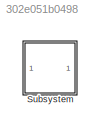
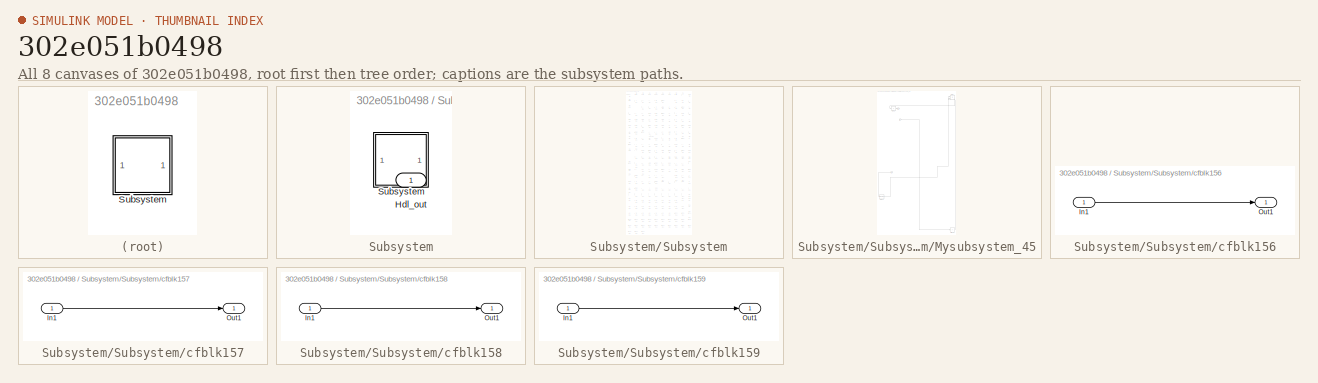
[diagram: thumbnail index - all 8 canvases of the model, root first then tree order]
MODEL slx_302e051b0498
KIND model
CONFIG AbsTol = auto
CONFIG EnableMultiTasking = off
CONFIG FixedStep = auto
CONFIG MaxStep = auto
CONFIG MinStep = auto
CONFIG RelTol = 1e-3
CONFIG SampleTimeConstraint = Unconstrained
CONFIG SolverName = VariableStepAuto
CONFIG StartTime = 0.0
CONFIG StopTime = 10.0
BLOCK [SubSystem] Subsystem
BLOCK [Outport] Subsystem/Hdl_out
  OutDataTypeStr = uint8
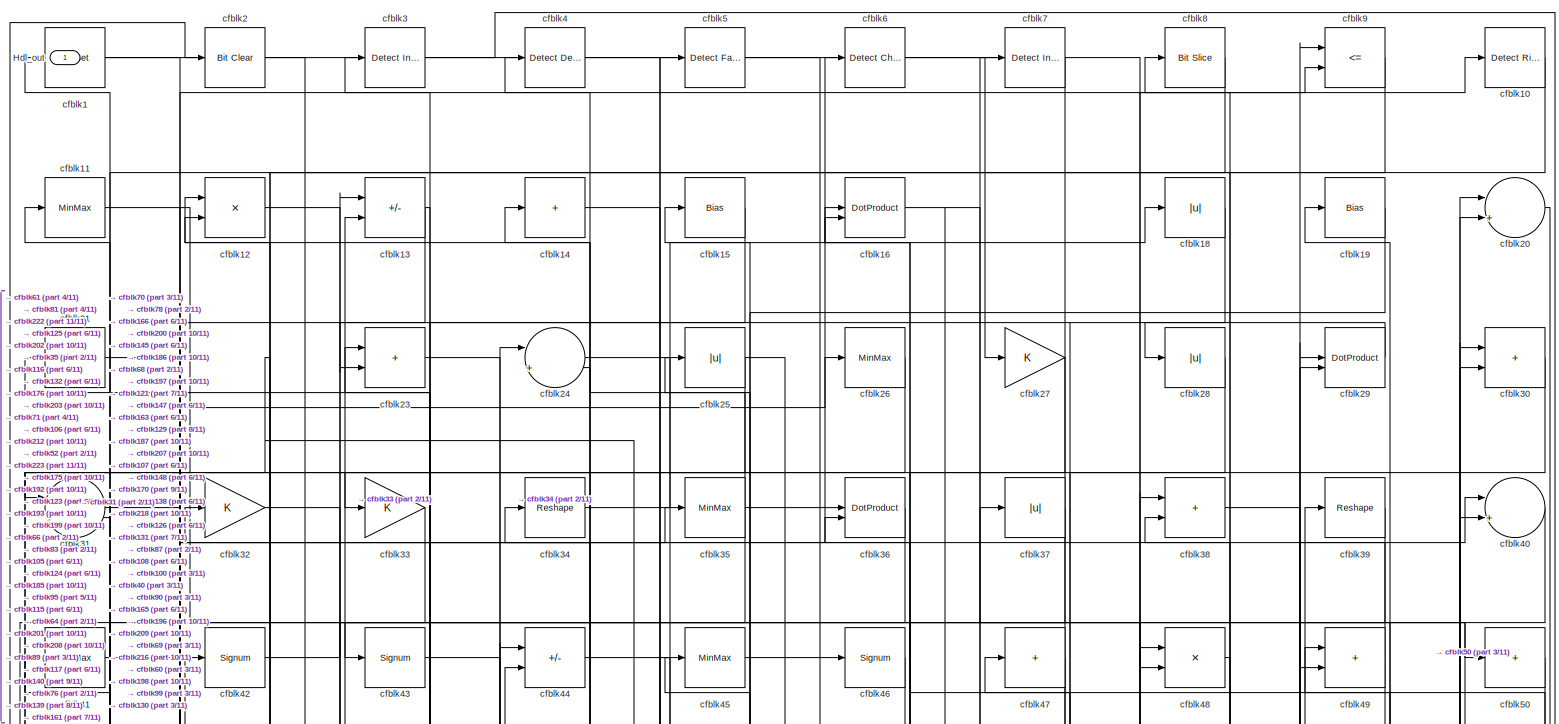
[diagram: Subsystem/Subsystem - part 1/11, full width, top band]
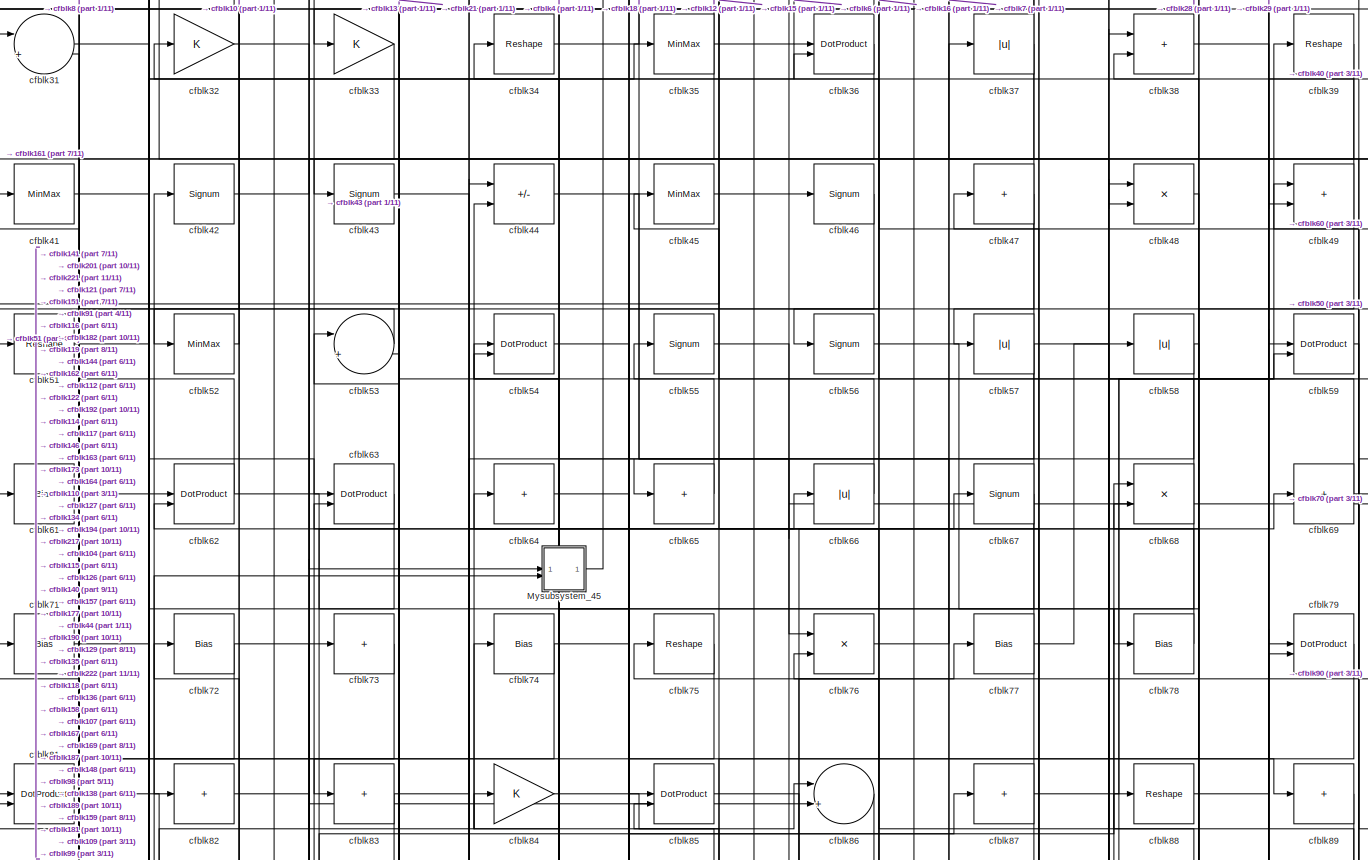
[diagram: Subsystem/Subsystem - part 2/11, full width, top band]
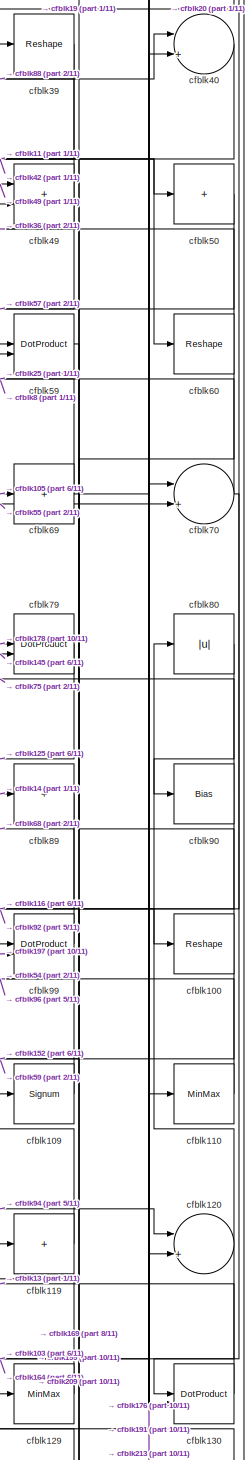
[diagram: Subsystem/Subsystem - part 3/11, middle right region]
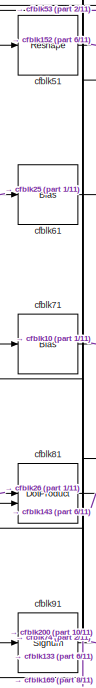
[diagram: Subsystem/Subsystem - part 4/11, top left region]
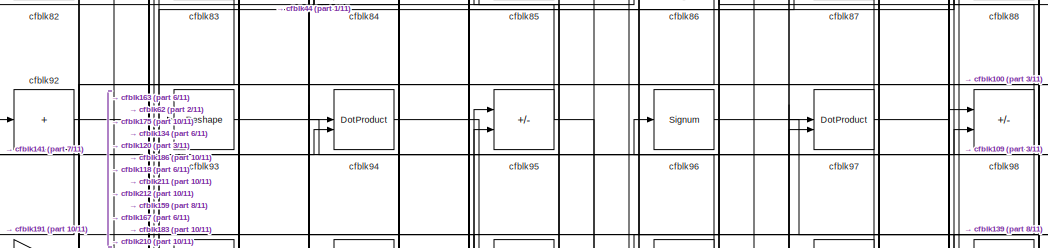
[diagram: Subsystem/Subsystem - part 5/11, central region]
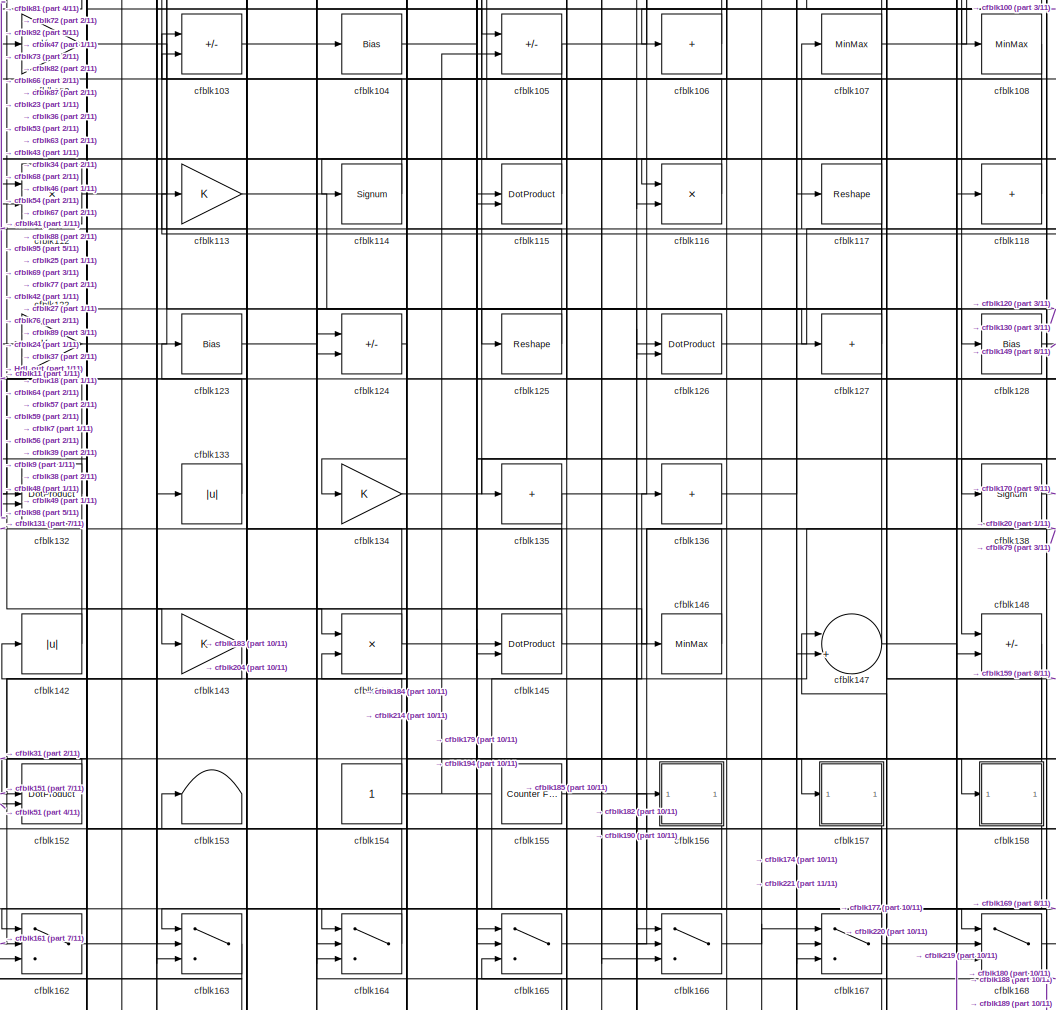
[diagram: Subsystem/Subsystem - part 6/11, central region]
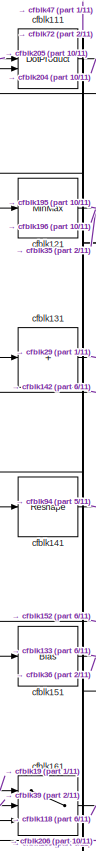
[diagram: Subsystem/Subsystem - part 7/11, middle left region]
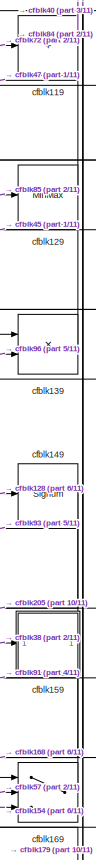
[diagram: Subsystem/Subsystem - part 8/11, middle right region]
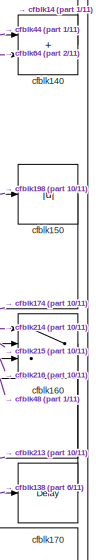
[diagram: Subsystem/Subsystem - part 9/11, middle right region]
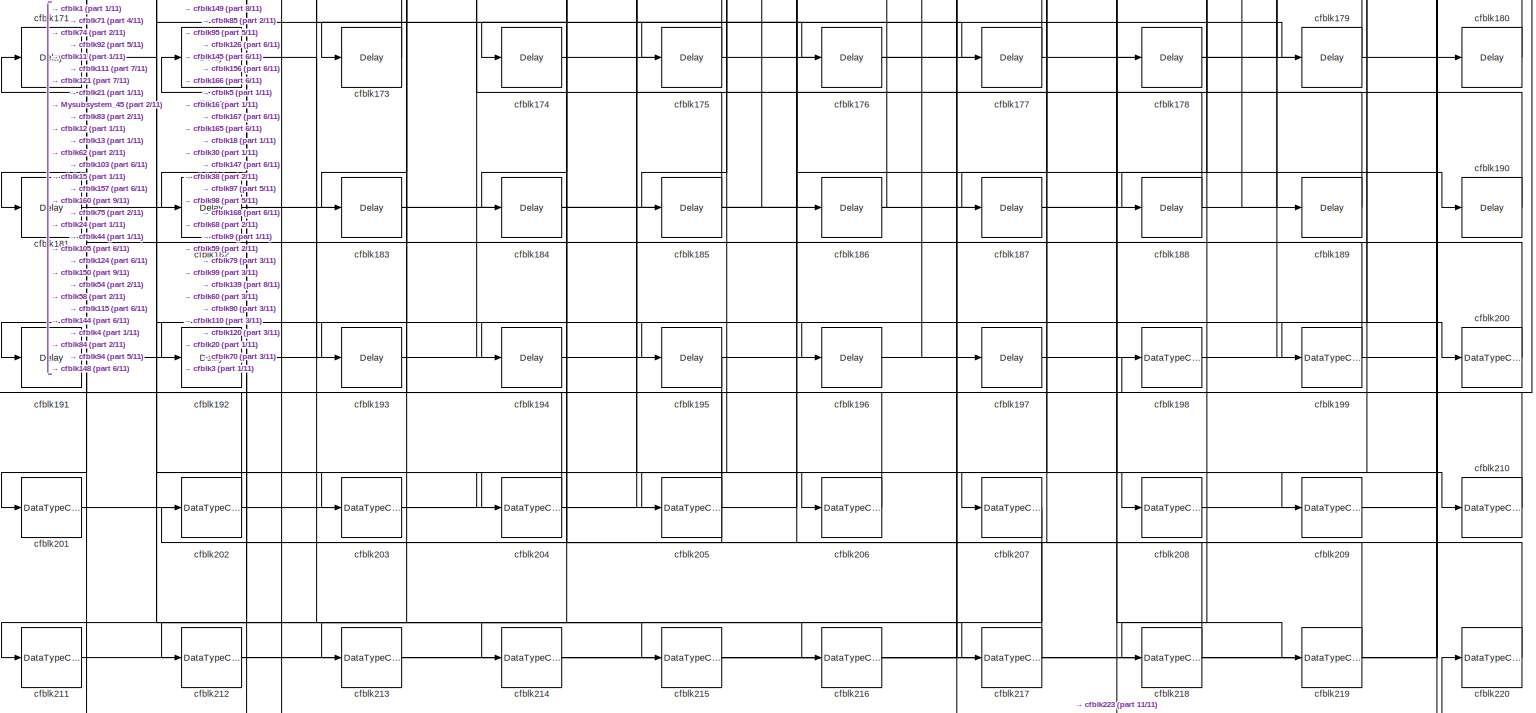
[diagram: Subsystem/Subsystem - part 10/11, full width, bottom band]
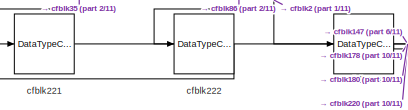
[diagram: Subsystem/Subsystem - part 11/11, bottom left region]
BLOCK [SubSystem] Subsystem/Subsystem
BLOCK [Outport] Subsystem/Subsystem/Hdl_out
  OutDataTypeStr = uint8
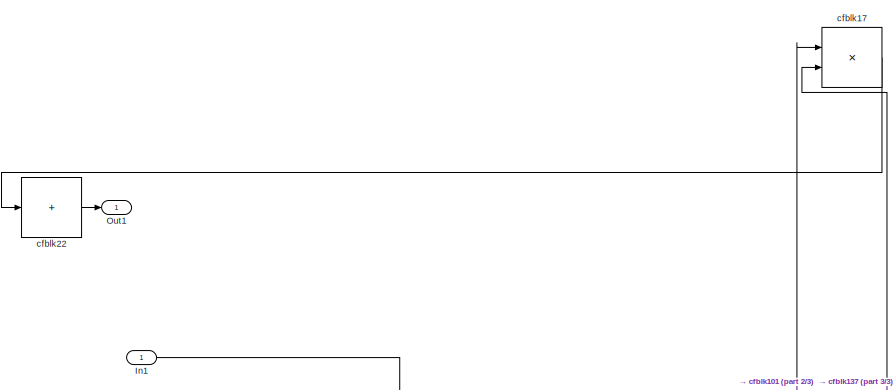
[diagram: Subsystem/Subsystem/Mysubsystem_45 - part 1/3, full width, top band]
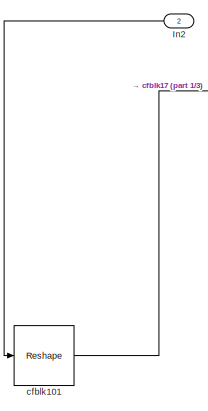
[diagram: Subsystem/Subsystem/Mysubsystem_45 - part 2/3, middle left region]
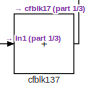
[diagram: Subsystem/Subsystem/Mysubsystem_45 - part 3/3, bottom right region]
BLOCK [SubSystem] Subsystem/Subsystem/Mysubsystem_45
  RTWFcnName = Mysubsystem_45
  RTWFcnNameOpts = User specified
  RTWFileNameOpts = Use function name
  RTWSystemCode = Reusable function
  TreatAsAtomicUnit = on
BLOCK [Inport] Subsystem/Subsystem/Mysubsystem_45/In1
BLOCK [Inport] Subsystem/Subsystem/Mysubsystem_45/In2
  Port = 2
BLOCK [Outport] Subsystem/Subsystem/Mysubsystem_45/Out1
BLOCK [Reshape] Subsystem/Subsystem/Mysubsystem_45/cfblk101
BLOCK [Sum] Subsystem/Subsystem/Mysubsystem_45/cfblk137
  IconShape = rectangular
  Inputs = +
BLOCK [Product] Subsystem/Subsystem/Mysubsystem_45/cfblk17
  Inputs = */
  RndMeth = Zero
  SaturateOnIntegerOverflow = on
BLOCK [Sum] Subsystem/Subsystem/Mysubsystem_45/cfblk22
  IconShape = rectangular
  Inputs = +
BLOCK [Reference] Subsystem/Subsystem/cfblk1  REF=simulink/Logic and Bit
Operations/Bit Set
  LibrarySourceBlock = hdlsllib/Logic and Bit\nOperations/Bit Set
  SourceBlock = simulink/Logic and Bit\nOperations/Bit Set
  SourceType = Bit Set
BLOCK [Reference] Subsystem/Subsystem/cfblk10  REF=hdlsllib/Logic and Bit
Operations/Detect Rise
Positive
  SourceBlock = hdlsllib/Logic and Bit\nOperations/Detect Rise\nPositive
  SourceType = Detect Rise Positive
BLOCK [Reshape] Subsystem/Subsystem/cfblk100
BLOCK [Gain] Subsystem/Subsystem/cfblk102
  OutDataTypeStr = uint8
BLOCK [Sum] Subsystem/Subsystem/cfblk103
  IconShape = rectangular
  Inputs = +-
  OutDataTypeStr = uint8
BLOCK [Bias] Subsystem/Subsystem/cfblk104
  Bias = 0.0
  SaturateOnIntegerOverflow = off
BLOCK [Sum] Subsystem/Subsystem/cfblk105
  IconShape = rectangular
  Inputs = +-
  OutDataTypeStr = uint8
BLOCK [Sum] Subsystem/Subsystem/cfblk106
  IconShape = rectangular
  Inputs = +
  OutDataTypeStr = uint8
BLOCK [MinMax] Subsystem/Subsystem/cfblk107
  OutDataTypeStr = uint8
BLOCK [MinMax] Subsystem/Subsystem/cfblk108
  OutDataTypeStr = uint8
BLOCK [Signum] Subsystem/Subsystem/cfblk109
BLOCK [MinMax] Subsystem/Subsystem/cfblk11
  OutDataTypeStr = uint8
BLOCK [MinMax] Subsystem/Subsystem/cfblk110
  OutDataTypeStr = uint8
BLOCK [DotProduct] Subsystem/Subsystem/cfblk111
  OutDataTypeStr = uint8
BLOCK [Product] Subsystem/Subsystem/cfblk112
  Inputs = */
  OutDataTypeStr = uint8
  RndMeth = Zero
  SaturateOnIntegerOverflow = on
BLOCK [Gain] Subsystem/Subsystem/cfblk113
  OutDataTypeStr = uint8
BLOCK [Signum] Subsystem/Subsystem/cfblk114
BLOCK [DotProduct] Subsystem/Subsystem/cfblk115
  OutDataTypeStr = uint8
BLOCK [Product] Subsystem/Subsystem/cfblk116
  Inputs = */
  OutDataTypeStr = uint8
  RndMeth = Zero
  SaturateOnIntegerOverflow = on
BLOCK [Reshape] Subsystem/Subsystem/cfblk117
BLOCK [Sum] Subsystem/Subsystem/cfblk118
  IconShape = rectangular
  Inputs = +
  OutDataTypeStr = uint8
BLOCK [Sum] Subsystem/Subsystem/cfblk119
  IconShape = rectangular
  Inputs = +
  OutDataTypeStr = uint8
BLOCK [Product] Subsystem/Subsystem/cfblk12
  Inputs = */
  OutDataTypeStr = uint8
  RndMeth = Zero
  SaturateOnIntegerOverflow = on
BLOCK [Sum] Subsystem/Subsystem/cfblk120
  Inputs = |++
  OutDataTypeStr = uint8
BLOCK [MinMax] Subsystem/Subsystem/cfblk121
  OutDataTypeStr = uint8
BLOCK [Gain] Subsystem/Subsystem/cfblk122
  OutDataTypeStr = uint8
BLOCK [Bias] Subsystem/Subsystem/cfblk123
  Bias = 0.0
  SaturateOnIntegerOverflow = off
BLOCK [Sum] Subsystem/Subsystem/cfblk124
  IconShape = rectangular
  Inputs = +-
  OutDataTypeStr = uint8
BLOCK [Reshape] Subsystem/Subsystem/cfblk125
BLOCK [DotProduct] Subsystem/Subsystem/cfblk126
  OutDataTypeStr = uint8
BLOCK [Sum] Subsystem/Subsystem/cfblk127
  IconShape = rectangular
  Inputs = +
  OutDataTypeStr = uint8
BLOCK [Bias] Subsystem/Subsystem/cfblk128
  Bias = 0.0
  SaturateOnIntegerOverflow = off
BLOCK [MinMax] Subsystem/Subsystem/cfblk129
  OutDataTypeStr = uint8
BLOCK [Sum] Subsystem/Subsystem/cfblk13
  IconShape = rectangular
  Inputs = +-
  OutDataTypeStr = uint8
BLOCK [DotProduct] Subsystem/Subsystem/cfblk130
  OutDataTypeStr = uint8
BLOCK [Sum] Subsystem/Subsystem/cfblk131
  IconShape = rectangular
  Inputs = +
  OutDataTypeStr = uint8
BLOCK [DotProduct] Subsystem/Subsystem/cfblk132
  OutDataTypeStr = uint8
BLOCK [Abs] Subsystem/Subsystem/cfblk133
  OutDataTypeStr = uint8
  SaturateOnIntegerOverflow = off
BLOCK [Gain] Subsystem/Subsystem/cfblk134
  OutDataTypeStr = uint8
BLOCK [Sum] Subsystem/Subsystem/cfblk135
  IconShape = rectangular
  Inputs = +
  OutDataTypeStr = uint8
BLOCK [Sum] Subsystem/Subsystem/cfblk136
  IconShape = rectangular
  Inputs = +
  OutDataTypeStr = uint8
BLOCK [Signum] Subsystem/Subsystem/cfblk138
BLOCK [Product] Subsystem/Subsystem/cfblk139
  Inputs = */
  OutDataTypeStr = uint8
  RndMeth = Zero
  SaturateOnIntegerOverflow = on
BLOCK [Sum] Subsystem/Subsystem/cfblk14
  IconShape = rectangular
  Inputs = +
  OutDataTypeStr = uint8
BLOCK [Sum] Subsystem/Subsystem/cfblk140
  IconShape = rectangular
  OutDataTypeStr = uint8
BLOCK [Reshape] Subsystem/Subsystem/cfblk141
BLOCK [Abs] Subsystem/Subsystem/cfblk142
  OutDataTypeStr = uint8
  SaturateOnIntegerOverflow = off
BLOCK [Gain] Subsystem/Subsystem/cfblk143
  OutDataTypeStr = uint8
BLOCK [Product] Subsystem/Subsystem/cfblk144
  Inputs = */
  OutDataTypeStr = uint8
  RndMeth = Zero
  SaturateOnIntegerOverflow = on
BLOCK [DotProduct] Subsystem/Subsystem/cfblk145
  OutDataTypeStr = uint8
BLOCK [MinMax] Subsystem/Subsystem/cfblk146
  OutDataTypeStr = uint8
BLOCK [Sum] Subsystem/Subsystem/cfblk147
  Inputs = |++
  OutDataTypeStr = uint8
BLOCK [Sum] Subsystem/Subsystem/cfblk148
  IconShape = rectangular
  Inputs = +-
  OutDataTypeStr = uint8
BLOCK [Signum] Subsystem/Subsystem/cfblk149
BLOCK [Bias] Subsystem/Subsystem/cfblk15
  Bias = 0.0
  SaturateOnIntegerOverflow = off
BLOCK [Abs] Subsystem/Subsystem/cfblk150
  OutDataTypeStr = uint8
  SaturateOnIntegerOverflow = off
BLOCK [Bias] Subsystem/Subsystem/cfblk151
  Bias = 0.0
  SaturateOnIntegerOverflow = off
BLOCK [DotProduct] Subsystem/Subsystem/cfblk152
  OutDataTypeStr = uint8
BLOCK [Terminator] Subsystem/Subsystem/cfblk153
BLOCK [Constant] Subsystem/Subsystem/cfblk154
  OutDataTypeStr = uint8
  SampleTime = -1
BLOCK [Reference] Subsystem/Subsystem/cfblk155  REF=hdlsllib/Sources/Counter
Free-Running
  SourceBlock = hdlsllib/Sources/Counter\nFree-Running
  SourceType = Counter Free-Running
BLOCK [SubSystem] Subsystem/Subsystem/cfblk156
  LibrarySourceBlock = hdlsllib/Ports &\nSubsystems/Subsystem
BLOCK [Inport] Subsystem/Subsystem/cfblk156/In1
BLOCK [Outport] Subsystem/Subsystem/cfblk156/Out1
BLOCK [SubSystem] Subsystem/Subsystem/cfblk157
  LibrarySourceBlock = hdlsllib/Ports &\nSubsystems/Subsystem
BLOCK [Inport] Subsystem/Subsystem/cfblk157/In1
BLOCK [Outport] Subsystem/Subsystem/cfblk157/Out1
BLOCK [SubSystem] Subsystem/Subsystem/cfblk158
  LibrarySourceBlock = hdlsllib/Ports &\nSubsystems/Subsystem
BLOCK [Inport] Subsystem/Subsystem/cfblk158/In1
BLOCK [Outport] Subsystem/Subsystem/cfblk158/Out1
BLOCK [SubSystem] Subsystem/Subsystem/cfblk159
  LibrarySourceBlock = hdlsllib/Ports &\nSubsystems/Subsystem
BLOCK [Inport] Subsystem/Subsystem/cfblk159/In1
BLOCK [Outport] Subsystem/Subsystem/cfblk159/Out1
BLOCK [DotProduct] Subsystem/Subsystem/cfblk16
  OutDataTypeStr = uint8
BLOCK [Switch] Subsystem/Subsystem/cfblk160
  InputSameDT = off
  OutDataTypeStr = uint8
  SaturateOnIntegerOverflow = off
BLOCK [Switch] Subsystem/Subsystem/cfblk161
  InputSameDT = off
  OutDataTypeStr = uint8
  SaturateOnIntegerOverflow = off
BLOCK [Switch] Subsystem/Subsystem/cfblk162
  InputSameDT = off
  OutDataTypeStr = uint8
  SaturateOnIntegerOverflow = off
BLOCK [Switch] Subsystem/Subsystem/cfblk163
  InputSameDT = off
  OutDataTypeStr = uint8
  SaturateOnIntegerOverflow = off
BLOCK [Switch] Subsystem/Subsystem/cfblk164
  InputSameDT = off
  OutDataTypeStr = uint8
  SaturateOnIntegerOverflow = off
BLOCK [Switch] Subsystem/Subsystem/cfblk165
  InputSameDT = off
  OutDataTypeStr = uint8
  SaturateOnIntegerOverflow = off
BLOCK [Switch] Subsystem/Subsystem/cfblk166
  InputSameDT = off
  OutDataTypeStr = uint8
  SaturateOnIntegerOverflow = off
BLOCK [Switch] Subsystem/Subsystem/cfblk167
  InputSameDT = off
  OutDataTypeStr = uint8
  SaturateOnIntegerOverflow = off
BLOCK [Switch] Subsystem/Subsystem/cfblk168
  InputSameDT = off
  OutDataTypeStr = uint8
  SaturateOnIntegerOverflow = off
BLOCK [Switch] Subsystem/Subsystem/cfblk169
  InputSameDT = off
  OutDataTypeStr = uint8
  SaturateOnIntegerOverflow = off
BLOCK [Delay] Subsystem/Subsystem/cfblk170
  InputPortMap = u0
  SampleTime = 1
BLOCK [Delay] Subsystem/Subsystem/cfblk171
  InputPortMap = u0
  SampleTime = 1
BLOCK [Delay] Subsystem/Subsystem/cfblk172
  InputPortMap = u0
  SampleTime = 1
BLOCK [Delay] Subsystem/Subsystem/cfblk173
  InputPortMap = u0
  SampleTime = 1
BLOCK [Delay] Subsystem/Subsystem/cfblk174
  InputPortMap = u0
  SampleTime = 1
BLOCK [Delay] Subsystem/Subsystem/cfblk175
  InputPortMap = u0
  SampleTime = 1
BLOCK [Delay] Subsystem/Subsystem/cfblk176
  InputPortMap = u0
  SampleTime = 1
BLOCK [Delay] Subsystem/Subsystem/cfblk177
  InputPortMap = u0
  SampleTime = 1
BLOCK [Delay] Subsystem/Subsystem/cfblk178
  InputPortMap = u0
  SampleTime = 1
BLOCK [Delay] Subsystem/Subsystem/cfblk179
  InputPortMap = u0
  SampleTime = 1
BLOCK [Abs] Subsystem/Subsystem/cfblk18
  OutDataTypeStr = uint8
  SaturateOnIntegerOverflow = off
BLOCK [Delay] Subsystem/Subsystem/cfblk180
  InputPortMap = u0
  SampleTime = 1
BLOCK [Delay] Subsystem/Subsystem/cfblk181
  InputPortMap = u0
  SampleTime = 1
BLOCK [Delay] Subsystem/Subsystem/cfblk182
  InputPortMap = u0
  SampleTime = 1
BLOCK [Delay] Subsystem/Subsystem/cfblk183
  InputPortMap = u0
  SampleTime = 1
BLOCK [Delay] Subsystem/Subsystem/cfblk184
  InputPortMap = u0
  SampleTime = 1
BLOCK [Delay] Subsystem/Subsystem/cfblk185
  InputPortMap = u0
  SampleTime = 1
BLOCK [Delay] Subsystem/Subsystem/cfblk186
  InputPortMap = u0
  SampleTime = 1
BLOCK [Delay] Subsystem/Subsystem/cfblk187
  InputPortMap = u0
  SampleTime = 1
BLOCK [Delay] Subsystem/Subsystem/cfblk188
  InputPortMap = u0
  SampleTime = 1
BLOCK [Delay] Subsystem/Subsystem/cfblk189
  InputPortMap = u0
  SampleTime = 1
BLOCK [Bias] Subsystem/Subsystem/cfblk19
  Bias = 0.0
  SaturateOnIntegerOverflow = off
BLOCK [Delay] Subsystem/Subsystem/cfblk190
  InputPortMap = u0
  SampleTime = 1
BLOCK [Delay] Subsystem/Subsystem/cfblk191
  InputPortMap = u0
  SampleTime = 1
BLOCK [Delay] Subsystem/Subsystem/cfblk192
  InputPortMap = u0
  SampleTime = 1
BLOCK [Delay] Subsystem/Subsystem/cfblk193
  InputPortMap = u0
  SampleTime = 1
BLOCK [Delay] Subsystem/Subsystem/cfblk194
  InputPortMap = u0
  SampleTime = 1
BLOCK [Delay] Subsystem/Subsystem/cfblk195
  InputPortMap = u0
  SampleTime = 1
BLOCK [Delay] Subsystem/Subsystem/cfblk196
  InputPortMap = u0
  SampleTime = 1
BLOCK [Delay] Subsystem/Subsystem/cfblk197
  InputPortMap = u0
  SampleTime = 1
BLOCK [DataTypeConversion] Subsystem/Subsystem/cfblk198
  OutDataTypeStr = uint8
  RndMeth = Floor
  SaturateOnIntegerOverflow = off
BLOCK [DataTypeConversion] Subsystem/Subsystem/cfblk199
  OutDataTypeStr = uint8
  RndMeth = Floor
  SaturateOnIntegerOverflow = off
BLOCK [Reference] Subsystem/Subsystem/cfblk2  REF=simulink/Logic and Bit
Operations/Bit Clear
  LibrarySourceBlock = hdlsllib/Logic and Bit\nOperations/Bit Clear
  SourceBlock = simulink/Logic and Bit\nOperations/Bit Clear
  SourceType = Bit Clear
BLOCK [Sum] Subsystem/Subsystem/cfblk20
  Inputs = |++
  OutDataTypeStr = uint8
BLOCK [DataTypeConversion] Subsystem/Subsystem/cfblk200
  OutDataTypeStr = uint8
  RndMeth = Floor
  SaturateOnIntegerOverflow = off
BLOCK [DataTypeConversion] Subsystem/Subsystem/cfblk201
  OutDataTypeStr = uint8
  RndMeth = Floor
  SaturateOnIntegerOverflow = off
BLOCK [DataTypeConversion] Subsystem/Subsystem/cfblk202
  OutDataTypeStr = uint8
  RndMeth = Floor
  SaturateOnIntegerOverflow = off
BLOCK [DataTypeConversion] Subsystem/Subsystem/cfblk203
  OutDataTypeStr = uint8
  RndMeth = Floor
  SaturateOnIntegerOverflow = off
BLOCK [DataTypeConversion] Subsystem/Subsystem/cfblk204
  OutDataTypeStr = uint8
  RndMeth = Floor
  SaturateOnIntegerOverflow = off
BLOCK [DataTypeConversion] Subsystem/Subsystem/cfblk205
  OutDataTypeStr = uint8
  RndMeth = Floor
  SaturateOnIntegerOverflow = off
BLOCK [DataTypeConversion] Subsystem/Subsystem/cfblk206
  OutDataTypeStr = uint8
  RndMeth = Floor
  SaturateOnIntegerOverflow = off
BLOCK [DataTypeConversion] Subsystem/Subsystem/cfblk207
  OutDataTypeStr = uint8
  RndMeth = Floor
  SaturateOnIntegerOverflow = off
BLOCK [DataTypeConversion] Subsystem/Subsystem/cfblk208
  OutDataTypeStr = uint8
  RndMeth = Floor
  SaturateOnIntegerOverflow = off
BLOCK [DataTypeConversion] Subsystem/Subsystem/cfblk209
  OutDataTypeStr = uint8
  RndMeth = Floor
  SaturateOnIntegerOverflow = off
BLOCK [MinMax] Subsystem/Subsystem/cfblk21
  OutDataTypeStr = uint8
BLOCK [DataTypeConversion] Subsystem/Subsystem/cfblk210
  OutDataTypeStr = uint8
  RndMeth = Floor
  SaturateOnIntegerOverflow = off
BLOCK [DataTypeConversion] Subsystem/Subsystem/cfblk211
  OutDataTypeStr = uint8
  RndMeth = Floor
  SaturateOnIntegerOverflow = off
BLOCK [DataTypeConversion] Subsystem/Subsystem/cfblk212
  OutDataTypeStr = uint8
  RndMeth = Floor
  SaturateOnIntegerOverflow = off
BLOCK [DataTypeConversion] Subsystem/Subsystem/cfblk213
  OutDataTypeStr = uint8
  RndMeth = Floor
  SaturateOnIntegerOverflow = off
BLOCK [DataTypeConversion] Subsystem/Subsystem/cfblk214
  OutDataTypeStr = uint8
  RndMeth = Floor
  SaturateOnIntegerOverflow = off
BLOCK [DataTypeConversion] Subsystem/Subsystem/cfblk215
  OutDataTypeStr = uint8
  RndMeth = Floor
  SaturateOnIntegerOverflow = off
BLOCK [DataTypeConversion] Subsystem/Subsystem/cfblk216
  OutDataTypeStr = uint8
  RndMeth = Floor
  SaturateOnIntegerOverflow = off
BLOCK [DataTypeConversion] Subsystem/Subsystem/cfblk217
  OutDataTypeStr = uint8
  RndMeth = Floor
  SaturateOnIntegerOverflow = off
BLOCK [DataTypeConversion] Subsystem/Subsystem/cfblk218
  OutDataTypeStr = uint8
  RndMeth = Floor
  SaturateOnIntegerOverflow = off
BLOCK [DataTypeConversion] Subsystem/Subsystem/cfblk219
  OutDataTypeStr = uint8
  RndMeth = Floor
  SaturateOnIntegerOverflow = off
BLOCK [DataTypeConversion] Subsystem/Subsystem/cfblk220
  OutDataTypeStr = uint8
  RndMeth = Floor
  SaturateOnIntegerOverflow = off
BLOCK [DataTypeConversion] Subsystem/Subsystem/cfblk221
  OutDataTypeStr = uint8
  RndMeth = Floor
  SaturateOnIntegerOverflow = off
BLOCK [DataTypeConversion] Subsystem/Subsystem/cfblk222
  OutDataTypeStr = uint8
  RndMeth = Floor
  SaturateOnIntegerOverflow = off
BLOCK [DataTypeConversion] Subsystem/Subsystem/cfblk223
  OutDataTypeStr = uint8
  RndMeth = Floor
  SaturateOnIntegerOverflow = off
BLOCK [Sum] Subsystem/Subsystem/cfblk23
  IconShape = rectangular
  OutDataTypeStr = uint8
BLOCK [Sum] Subsystem/Subsystem/cfblk24
  Inputs = |++
  OutDataTypeStr = uint8
BLOCK [Abs] Subsystem/Subsystem/cfblk25
  OutDataTypeStr = uint8
  SaturateOnIntegerOverflow = off
BLOCK [MinMax] Subsystem/Subsystem/cfblk26
  OutDataTypeStr = uint8
BLOCK [Gain] Subsystem/Subsystem/cfblk27
  OutDataTypeStr = uint8
BLOCK [Abs] Subsystem/Subsystem/cfblk28
  OutDataTypeStr = uint8
  SaturateOnIntegerOverflow = off
BLOCK [DotProduct] Subsystem/Subsystem/cfblk29
  OutDataTypeStr = uint8
BLOCK [Reference] Subsystem/Subsystem/cfblk3  REF=simulink/Logic and Bit
Operations/Detect
Increase
  LibrarySourceBlock = hdlsllib/Logic and Bit\nOperations/Detect\nIncrease
  SourceBlock = simulink/Logic and Bit\nOperations/Detect\nIncrease
  SourceType = Detect Increase
BLOCK [Sum] Subsystem/Subsystem/cfblk30
  IconShape = rectangular
  OutDataTypeStr = uint8
BLOCK [Sum] Subsystem/Subsystem/cfblk31
  Inputs = |++
  OutDataTypeStr = uint8
BLOCK [Gain] Subsystem/Subsystem/cfblk32
  OutDataTypeStr = uint8
BLOCK [Gain] Subsystem/Subsystem/cfblk33
  OutDataTypeStr = uint8
BLOCK [Reshape] Subsystem/Subsystem/cfblk34
BLOCK [MinMax] Subsystem/Subsystem/cfblk35
  OutDataTypeStr = uint8
BLOCK [DotProduct] Subsystem/Subsystem/cfblk36
  OutDataTypeStr = uint8
BLOCK [Abs] Subsystem/Subsystem/cfblk37
  OutDataTypeStr = uint8
  SaturateOnIntegerOverflow = off
BLOCK [Sum] Subsystem/Subsystem/cfblk38
  IconShape = rectangular
  OutDataTypeStr = uint8
BLOCK [Reshape] Subsystem/Subsystem/cfblk39
BLOCK [Reference] Subsystem/Subsystem/cfblk4  REF=simulink/Logic and Bit
Operations/Detect
Decrease
  LibrarySourceBlock = hdlsllib/Logic and Bit\nOperations/Detect\nDecrease
  SourceBlock = simulink/Logic and Bit\nOperations/Detect\nDecrease
  SourceType = Detect Decrease
BLOCK [Sum] Subsystem/Subsystem/cfblk40
  Inputs = |++
  OutDataTypeStr = uint8
BLOCK [MinMax] Subsystem/Subsystem/cfblk41
  OutDataTypeStr = uint8
BLOCK [Signum] Subsystem/Subsystem/cfblk42
BLOCK [Signum] Subsystem/Subsystem/cfblk43
BLOCK [Sum] Subsystem/Subsystem/cfblk44
  IconShape = rectangular
  Inputs = +-
  OutDataTypeStr = uint8
BLOCK [MinMax] Subsystem/Subsystem/cfblk45
  OutDataTypeStr = uint8
BLOCK [Signum] Subsystem/Subsystem/cfblk46
BLOCK [Sum] Subsystem/Subsystem/cfblk47
  IconShape = rectangular
  Inputs = +
  OutDataTypeStr = uint8
BLOCK [Product] Subsystem/Subsystem/cfblk48
  Inputs = */
  OutDataTypeStr = uint8
  RndMeth = Zero
  SaturateOnIntegerOverflow = on
BLOCK [Sum] Subsystem/Subsystem/cfblk49
  IconShape = rectangular
  OutDataTypeStr = uint8
BLOCK [Reference] Subsystem/Subsystem/cfblk5  REF=hdlsllib/Logic and Bit
Operations/Detect Fall
Negative
  SourceBlock = hdlsllib/Logic and Bit\nOperations/Detect Fall\nNegative
  SourceType = Detect Fall Negative
BLOCK [Sum] Subsystem/Subsystem/cfblk50
  IconShape = rectangular
  Inputs = +
  OutDataTypeStr = uint8
BLOCK [Reshape] Subsystem/Subsystem/cfblk51
BLOCK [MinMax] Subsystem/Subsystem/cfblk52
  OutDataTypeStr = uint8
BLOCK [Sum] Subsystem/Subsystem/cfblk53
  Inputs = |++
  OutDataTypeStr = uint8
BLOCK [DotProduct] Subsystem/Subsystem/cfblk54
  OutDataTypeStr = uint8
BLOCK [Signum] Subsystem/Subsystem/cfblk55
BLOCK [Signum] Subsystem/Subsystem/cfblk56
BLOCK [Abs] Subsystem/Subsystem/cfblk57
  OutDataTypeStr = uint8
  SaturateOnIntegerOverflow = off
BLOCK [Abs] Subsystem/Subsystem/cfblk58
  OutDataTypeStr = uint8
  SaturateOnIntegerOverflow = off
BLOCK [DotProduct] Subsystem/Subsystem/cfblk59
  OutDataTypeStr = uint8
BLOCK [Reference] Subsystem/Subsystem/cfblk6  REF=simulink/Logic and Bit
Operations/Detect
Change
  LibrarySourceBlock = hdlsllib/Logic and Bit\nOperations/Detect\nChange
  SourceBlock = simulink/Logic and Bit\nOperations/Detect\nChange
  SourceType = Detect Change
BLOCK [Reshape] Subsystem/Subsystem/cfblk60
BLOCK [Bias] Subsystem/Subsystem/cfblk61
  Bias = 0.0
  SaturateOnIntegerOverflow = off
BLOCK [DotProduct] Subsystem/Subsystem/cfblk62
  OutDataTypeStr = uint8
BLOCK [DotProduct] Subsystem/Subsystem/cfblk63
  OutDataTypeStr = uint8
BLOCK [Sum] Subsystem/Subsystem/cfblk64
  IconShape = rectangular
  Inputs = +
  OutDataTypeStr = uint8
BLOCK [Sum] Subsystem/Subsystem/cfblk65
  IconShape = rectangular
  Inputs = +
  OutDataTypeStr = uint8
BLOCK [Abs] Subsystem/Subsystem/cfblk66
  OutDataTypeStr = uint8
  SaturateOnIntegerOverflow = off
BLOCK [Signum] Subsystem/Subsystem/cfblk67
BLOCK [Product] Subsystem/Subsystem/cfblk68
  Inputs = */
  OutDataTypeStr = uint8
  RndMeth = Zero
  SaturateOnIntegerOverflow = on
BLOCK [Sum] Subsystem/Subsystem/cfblk69
  IconShape = rectangular
  Inputs = +
  OutDataTypeStr = uint8
BLOCK [Reference] Subsystem/Subsystem/cfblk7  REF=simulink/Logic and Bit
Operations/Detect
Increase
  LibrarySourceBlock = hdlsllib/Logic and Bit\nOperations/Detect\nIncrease
  SourceBlock = simulink/Logic and Bit\nOperations/Detect\nIncrease
  SourceType = Detect Increase
BLOCK [Sum] Subsystem/Subsystem/cfblk70
  Inputs = |++
  OutDataTypeStr = uint8
BLOCK [Bias] Subsystem/Subsystem/cfblk71
  Bias = 0.0
  SaturateOnIntegerOverflow = off
BLOCK [Bias] Subsystem/Subsystem/cfblk72
  Bias = 0.0
  SaturateOnIntegerOverflow = off
BLOCK [Sum] Subsystem/Subsystem/cfblk73
  IconShape = rectangular
  Inputs = +
  OutDataTypeStr = uint8
BLOCK [Bias] Subsystem/Subsystem/cfblk74
  Bias = 0.0
  SaturateOnIntegerOverflow = off
BLOCK [Reshape] Subsystem/Subsystem/cfblk75
BLOCK [Product] Subsystem/Subsystem/cfblk76
  Inputs = */
  OutDataTypeStr = uint8
  RndMeth = Zero
  SaturateOnIntegerOverflow = on
BLOCK [Bias] Subsystem/Subsystem/cfblk77
  Bias = 0.0
  SaturateOnIntegerOverflow = off
BLOCK [Bias] Subsystem/Subsystem/cfblk78
  Bias = 0.0
  SaturateOnIntegerOverflow = off
BLOCK [DotProduct] Subsystem/Subsystem/cfblk79
  OutDataTypeStr = uint8
BLOCK [Reference] Subsystem/Subsystem/cfblk8  REF=hdlsllib/Logic and Bit
Operations/Bit Slice
  SourceBlock = hdlsllib/Logic and Bit\nOperations/Bit Slice
  SourceType = Bit Slice
BLOCK [Abs] Subsystem/Subsystem/cfblk80
  OutDataTypeStr = uint8
  SaturateOnIntegerOverflow = off
BLOCK [DotProduct] Subsystem/Subsystem/cfblk81
  OutDataTypeStr = uint8
BLOCK [Sum] Subsystem/Subsystem/cfblk82
  IconShape = rectangular
  Inputs = +
  OutDataTypeStr = uint8
BLOCK [Sum] Subsystem/Subsystem/cfblk83
  IconShape = rectangular
  Inputs = +
  OutDataTypeStr = uint8
BLOCK [Gain] Subsystem/Subsystem/cfblk84
  OutDataTypeStr = uint8
BLOCK [DotProduct] Subsystem/Subsystem/cfblk85
  OutDataTypeStr = uint8
BLOCK [Sum] Subsystem/Subsystem/cfblk86
  Inputs = |++
  OutDataTypeStr = uint8
BLOCK [Sum] Subsystem/Subsystem/cfblk87
  IconShape = rectangular
  Inputs = +
  OutDataTypeStr = uint8
BLOCK [Reshape] Subsystem/Subsystem/cfblk88
BLOCK [Sum] Subsystem/Subsystem/cfblk89
  IconShape = rectangular
  Inputs = +
  OutDataTypeStr = uint8
BLOCK [RelationalOperator] Subsystem/Subsystem/cfblk9
  InputSameDT = off
  Operator = <=
  OutDataTypeStr = boolean
BLOCK [Bias] Subsystem/Subsystem/cfblk90
  Bias = 0.0
  SaturateOnIntegerOverflow = off
BLOCK [Signum] Subsystem/Subsystem/cfblk91
BLOCK [Sum] Subsystem/Subsystem/cfblk92
  IconShape = rectangular
  Inputs = +
  OutDataTypeStr = uint8
BLOCK [Reshape] Subsystem/Subsystem/cfblk93
BLOCK [DotProduct] Subsystem/Subsystem/cfblk94
  OutDataTypeStr = uint8
BLOCK [Sum] Subsystem/Subsystem/cfblk95
  IconShape = rectangular
  Inputs = +-
  OutDataTypeStr = uint8
BLOCK [Signum] Subsystem/Subsystem/cfblk96
BLOCK [DotProduct] Subsystem/Subsystem/cfblk97
  OutDataTypeStr = uint8
BLOCK [Sum] Subsystem/Subsystem/cfblk98
  IconShape = rectangular
  Inputs = +-
  OutDataTypeStr = uint8
BLOCK [DotProduct] Subsystem/Subsystem/cfblk99
  OutDataTypeStr = uint8
LINE Subsystem/Subsystem/Mysubsystem_45/In1:1 -> Subsystem/Subsystem/Mysubsystem_45/cfblk137:1
LINE Subsystem/Subsystem/Mysubsystem_45/In2:1 -> Subsystem/Subsystem/Mysubsystem_45/cfblk101:1
LINE Subsystem/Subsystem/Mysubsystem_45/cfblk101:1 -> Subsystem/Subsystem/Mysubsystem_45/cfblk17:1
LINE Subsystem/Subsystem/Mysubsystem_45/cfblk137:1 -> Subsystem/Subsystem/Mysubsystem_45/cfblk17:2
LINE Subsystem/Subsystem/Mysubsystem_45/cfblk17:1 -> Subsystem/Subsystem/Mysubsystem_45/cfblk22:1
LINE Subsystem/Subsystem/Mysubsystem_45/cfblk22:1 -> Subsystem/Subsystem/Mysubsystem_45/Out1:1
NET Subsystem/Subsystem/Mysubsystem_45:1 -> Subsystem/Subsystem/cfblk181:1, Subsystem/Subsystem/cfblk182:1
NET Subsystem/Subsystem/cfblk100:1 -> Subsystem/Subsystem/cfblk152:1, Subsystem/Subsystem/cfblk19:1
LINE Subsystem/Subsystem/cfblk102:1 -> Subsystem/Subsystem/cfblk124:2
NET Subsystem/Subsystem/cfblk103:1 -> Subsystem/Subsystem/cfblk104:1, Subsystem/Subsystem/cfblk130:2, Subsystem/Subsystem/cfblk146:1
LINE Subsystem/Subsystem/cfblk104:1 -> Subsystem/Subsystem/cfblk88:1
NET Subsystem/Subsystem/cfblk105:1 -> Subsystem/Subsystem/cfblk114:1, Subsystem/Subsystem/cfblk184:1, Subsystem/Subsystem/cfblk69:1
LINE Subsystem/Subsystem/cfblk106:1 -> Subsystem/Subsystem/cfblk42:1
NET Subsystem/Subsystem/cfblk107:1 -> Subsystem/Subsystem/cfblk39:1, Subsystem/Subsystem/cfblk9:2
LINE Subsystem/Subsystem/cfblk108:1 -> Subsystem/Subsystem/cfblk112:1
LINE Subsystem/Subsystem/cfblk109:1 -> Subsystem/Subsystem/cfblk96:1
LINE Subsystem/Subsystem/cfblk10:1 -> Subsystem/Subsystem/cfblk52:1
LINE Subsystem/Subsystem/cfblk110:1 -> Subsystem/Subsystem/cfblk54:1
LINE Subsystem/Subsystem/cfblk111:1 -> Subsystem/Subsystem/cfblk204:1
LINE Subsystem/Subsystem/cfblk112:1 -> Subsystem/Subsystem/cfblk87:1
LINE Subsystem/Subsystem/cfblk113:1 -> Subsystem/Subsystem/cfblk128:1
LINE Subsystem/Subsystem/cfblk114:1 -> Subsystem/Subsystem/cfblk63:2
LINE Subsystem/Subsystem/cfblk115:1 -> Subsystem/Subsystem/cfblk24:2
LINE Subsystem/Subsystem/cfblk116:1 -> Subsystem/Subsystem/cfblk72:1
NET Subsystem/Subsystem/cfblk117:1 -> Subsystem/Subsystem/cfblk132:1, Subsystem/Subsystem/cfblk135:1, Subsystem/Subsystem/cfblk53:1
NET Subsystem/Subsystem/cfblk118:1 -> Subsystem/Subsystem/cfblk76:2, Subsystem/Subsystem/cfblk95:1
LINE Subsystem/Subsystem/cfblk119:1 -> Subsystem/Subsystem/cfblk84:1
NET Subsystem/Subsystem/cfblk11:1 -> Subsystem/Subsystem/cfblk216:1, Subsystem/Subsystem/cfblk60:1
NET Subsystem/Subsystem/cfblk120:1 -> Subsystem/Subsystem/cfblk164:3, Subsystem/Subsystem/cfblk80:1
NET Subsystem/Subsystem/cfblk121:1 -> Subsystem/Subsystem/cfblk195:1, Subsystem/Subsystem/cfblk196:1, Subsystem/Subsystem/cfblk35:1
LINE Subsystem/Subsystem/cfblk122:1 -> Subsystem/Subsystem/cfblk66:1
NET Subsystem/Subsystem/cfblk123:1 -> Subsystem/Subsystem/cfblk127:1, Subsystem/Subsystem/cfblk23:1
LINE Subsystem/Subsystem/cfblk124:1 -> Subsystem/Subsystem/cfblk214:1
LINE Subsystem/Subsystem/cfblk125:1 -> Subsystem/Subsystem/cfblk41:1
LINE Subsystem/Subsystem/cfblk126:1 -> Subsystem/Subsystem/cfblk9:1
NET Subsystem/Subsystem/cfblk127:1 -> Subsystem/Subsystem/cfblk107:1, Subsystem/Subsystem/cfblk34:1
LINE Subsystem/Subsystem/cfblk128:1 -> Subsystem/Subsystem/cfblk149:1
LINE Subsystem/Subsystem/cfblk129:1 -> Subsystem/Subsystem/cfblk47:1
LINE Subsystem/Subsystem/cfblk12:1 -> Subsystem/Subsystem/cfblk175:1
LINE Subsystem/Subsystem/cfblk130:1 -> Subsystem/Subsystem/cfblk13:2
LINE Subsystem/Subsystem/cfblk131:1 -> Subsystem/Subsystem/cfblk29:2
LINE Subsystem/Subsystem/cfblk132:1 -> Subsystem/Subsystem/cfblk11:1
LINE Subsystem/Subsystem/cfblk133:1 -> Subsystem/Subsystem/cfblk81:2
LINE Subsystem/Subsystem/cfblk134:1 -> Subsystem/Subsystem/cfblk95:2
NET Subsystem/Subsystem/cfblk135:1 -> Subsystem/Subsystem/cfblk162:1, Subsystem/Subsystem/cfblk77:1
LINE Subsystem/Subsystem/cfblk136:1 -> Subsystem/Subsystem/cfblk37:1
NET Subsystem/Subsystem/cfblk138:1 -> Subsystem/Subsystem/cfblk170:1, Subsystem/Subsystem/cfblk38:2
LINE Subsystem/Subsystem/cfblk139:1 -> Subsystem/Subsystem/cfblk45:1
NET Subsystem/Subsystem/cfblk13:1 -> Subsystem/Subsystem/cfblk23:2, Subsystem/Subsystem/cfblk83:1
LINE Subsystem/Subsystem/cfblk140:1 -> Subsystem/Subsystem/cfblk14:1
LINE Subsystem/Subsystem/cfblk141:1 -> Subsystem/Subsystem/cfblk94:2
LINE Subsystem/Subsystem/cfblk142:1 -> Subsystem/Subsystem/cfblk131:1
LINE Subsystem/Subsystem/cfblk143:1 -> Subsystem/Subsystem/cfblk142:1
NET Subsystem/Subsystem/cfblk144:1 -> Subsystem/Subsystem/cfblk102:1, Subsystem/Subsystem/cfblk179:1
NET Subsystem/Subsystem/cfblk145:1 -> Subsystem/Subsystem/cfblk123:1, Subsystem/Subsystem/cfblk168:3, Subsystem/Subsystem/cfblk190:1, Subsystem/Subsystem/cfblk79:2
LINE Subsystem/Subsystem/cfblk146:1 -> Subsystem/Subsystem/cfblk53:2
NET Subsystem/Subsystem/cfblk147:1 -> Subsystem/Subsystem/Hdl_out:1, Subsystem/Subsystem/cfblk219:1
LINE Subsystem/Subsystem/cfblk148:1 -> Subsystem/Subsystem/cfblk185:1
LINE Subsystem/Subsystem/cfblk149:1 -> Subsystem/Subsystem/cfblk205:1
LINE Subsystem/Subsystem/cfblk14:1 -> Subsystem/Subsystem/cfblk89:1
LINE Subsystem/Subsystem/cfblk150:1 -> Subsystem/Subsystem/cfblk174:1
NET Subsystem/Subsystem/cfblk151:1 -> Subsystem/Subsystem/cfblk133:1, Subsystem/Subsystem/cfblk36:2
LINE Subsystem/Subsystem/cfblk152:1 -> Subsystem/Subsystem/cfblk151:1
NET Subsystem/Subsystem/cfblk154:1 -> Subsystem/Subsystem/cfblk103:1, Subsystem/Subsystem/cfblk105:2, Subsystem/Subsystem/cfblk113:1, Subsystem/Subsystem/cfblk136:1, Subsystem/Subsystem/cfblk169:3
NET Subsystem/Subsystem/cfblk155:1 -> Subsystem/Subsystem/cfblk167:3, Subsystem/Subsystem/cfblk168:1
LINE Subsystem/Subsystem/cfblk156/In1:1 -> Subsystem/Subsystem/cfblk156/Out1:1
LINE Subsystem/Subsystem/cfblk156:1 -> Subsystem/Subsystem/cfblk165:2
LINE Subsystem/Subsystem/cfblk157/In1:1 -> Subsystem/Subsystem/cfblk157/Out1:1
LINE Subsystem/Subsystem/cfblk157:1 -> Subsystem/Subsystem/cfblk183:1
LINE Subsystem/Subsystem/cfblk158/In1:1 -> Subsystem/Subsystem/cfblk158/Out1:1
NET Subsystem/Subsystem/cfblk158:1 -> Subsystem/Subsystem/cfblk162:2, Subsystem/Subsystem/cfblk64:1
LINE Subsystem/Subsystem/cfblk159/In1:1 -> Subsystem/Subsystem/cfblk159/Out1:1
NET Subsystem/Subsystem/cfblk159:1 -> Subsystem/Subsystem/cfblk168:2, Subsystem/Subsystem/cfblk93:1
LINE Subsystem/Subsystem/cfblk15:1 -> Subsystem/Subsystem/cfblk193:1
LINE Subsystem/Subsystem/cfblk160:1 -> Subsystem/Subsystem/cfblk213:1
LINE Subsystem/Subsystem/cfblk161:1 -> Subsystem/Subsystem/cfblk118:1
LINE Subsystem/Subsystem/cfblk162:1 -> Subsystem/Subsystem/cfblk73:1
LINE Subsystem/Subsystem/cfblk163:1 -> Subsystem/Subsystem/cfblk161:3
LINE Subsystem/Subsystem/cfblk164:1 -> Subsystem/Subsystem/cfblk122:1
LINE Subsystem/Subsystem/cfblk165:1 -> Subsystem/Subsystem/cfblk20:1
LINE Subsystem/Subsystem/cfblk166:1 -> Subsystem/Subsystem/cfblk167:1
NET Subsystem/Subsystem/cfblk167:1 -> Subsystem/Subsystem/cfblk153:1, Subsystem/Subsystem/cfblk59:2, Subsystem/Subsystem/cfblk92:1
NET Subsystem/Subsystem/cfblk168:1 -> Subsystem/Subsystem/cfblk188:1, Subsystem/Subsystem/cfblk189:1
LINE Subsystem/Subsystem/cfblk169:1 -> Subsystem/Subsystem/cfblk91:1
NET Subsystem/Subsystem/cfblk16:1 -> Subsystem/Subsystem/cfblk197:1, Subsystem/Subsystem/cfblk48:2
LINE Subsystem/Subsystem/cfblk170:1 -> Subsystem/Subsystem/cfblk48:1
LINE Subsystem/Subsystem/cfblk171:1 -> Subsystem/Subsystem/cfblk215:1
LINE Subsystem/Subsystem/cfblk172:1 -> Subsystem/Subsystem/cfblk217:1
LINE Subsystem/Subsystem/cfblk173:1 -> Subsystem/Subsystem/cfblk62:1
LINE Subsystem/Subsystem/cfblk174:1 -> Subsystem/Subsystem/cfblk167:2
LINE Subsystem/Subsystem/cfblk175:1 -> Subsystem/Subsystem/cfblk94:1
LINE Subsystem/Subsystem/cfblk176:1 -> Subsystem/Subsystem/cfblk120:2
LINE Subsystem/Subsystem/cfblk177:1 -> Subsystem/Subsystem/cfblk165:1
LINE Subsystem/Subsystem/cfblk178:1 -> Subsystem/Subsystem/cfblk79:1
LINE Subsystem/Subsystem/cfblk179:1 -> Subsystem/Subsystem/cfblk139:1
LINE Subsystem/Subsystem/cfblk180:1 -> Subsystem/Subsystem/cfblk165:3
LINE Subsystem/Subsystem/cfblk181:1 -> Subsystem/Subsystem/cfblk59:1
LINE Subsystem/Subsystem/cfblk182:1 -> Subsystem/Subsystem/cfblk166:2
LINE Subsystem/Subsystem/cfblk183:1 -> Subsystem/Subsystem/cfblk98:1
LINE Subsystem/Subsystem/cfblk184:1 -> Subsystem/Subsystem/cfblk166:1
LINE Subsystem/Subsystem/cfblk185:1 -> Subsystem/Subsystem/cfblk44:1
LINE Subsystem/Subsystem/cfblk186:1 -> Subsystem/Subsystem/cfblk16:2
LINE Subsystem/Subsystem/cfblk187:1 -> Subsystem/Subsystem/cfblk38:1
LINE Subsystem/Subsystem/cfblk188:1 -> Subsystem/Subsystem/cfblk145:1
LINE Subsystem/Subsystem/cfblk189:1 -> Subsystem/Subsystem/cfblk68:2
NET Subsystem/Subsystem/cfblk18:1 -> Subsystem/Subsystem/cfblk132:2, Subsystem/Subsystem/cfblk187:1
LINE Subsystem/Subsystem/cfblk190:1 -> Subsystem/Subsystem/cfblk85:2
LINE Subsystem/Subsystem/cfblk191:1 -> Subsystem/Subsystem/cfblk70:1
LINE Subsystem/Subsystem/cfblk192:1 -> Subsystem/Subsystem/cfblk13:1
LINE Subsystem/Subsystem/cfblk193:1 -> Subsystem/Subsystem/cfblk24:1
LINE Subsystem/Subsystem/cfblk194:1 -> Subsystem/Subsystem/cfblk115:1
LINE Subsystem/Subsystem/cfblk195:1 -> Subsystem/Subsystem/cfblk202:1
LINE Subsystem/Subsystem/cfblk196:1 -> Subsystem/Subsystem/cfblk20:2
LINE Subsystem/Subsystem/cfblk197:1 -> Subsystem/Subsystem/cfblk99:2
LINE Subsystem/Subsystem/cfblk198:1 -> Subsystem/Subsystem/cfblk150:1
LINE Subsystem/Subsystem/cfblk199:1 -> Subsystem/Subsystem/cfblk3:1
LINE Subsystem/Subsystem/cfblk19:1 -> Subsystem/Subsystem/cfblk161:1
LINE Subsystem/Subsystem/cfblk1:1 -> Subsystem/Subsystem/cfblk203:1
LINE Subsystem/Subsystem/cfblk200:1 -> Subsystem/Subsystem/cfblk71:1
LINE Subsystem/Subsystem/cfblk201:1 -> Subsystem/Subsystem/cfblk5:1
LINE Subsystem/Subsystem/cfblk202:1 -> Subsystem/Subsystem/cfblk1:1
LINE Subsystem/Subsystem/cfblk203:1 -> Subsystem/Subsystem/cfblk206:1
NET Subsystem/Subsystem/cfblk204:1 -> Subsystem/Subsystem/cfblk103:2, Subsystem/Subsystem/cfblk156:1
LINE Subsystem/Subsystem/cfblk205:1 -> Subsystem/Subsystem/cfblk111:1
LINE Subsystem/Subsystem/cfblk206:1 -> Subsystem/Subsystem/cfblk111:2
LINE Subsystem/Subsystem/cfblk207:1 -> Subsystem/Subsystem/cfblk211:1
LINE Subsystem/Subsystem/cfblk208:1 -> Subsystem/Subsystem/cfblk30:1
LINE Subsystem/Subsystem/cfblk209:1 -> Subsystem/Subsystem/cfblk30:2
LINE Subsystem/Subsystem/cfblk20:1 -> Subsystem/Subsystem/cfblk99:1
LINE Subsystem/Subsystem/cfblk210:1 -> Subsystem/Subsystem/cfblk171:1
LINE Subsystem/Subsystem/cfblk211:1 -> Subsystem/Subsystem/cfblk97:1
LINE Subsystem/Subsystem/cfblk212:1 -> Subsystem/Subsystem/cfblk97:2
LINE Subsystem/Subsystem/cfblk213:1 -> Subsystem/Subsystem/cfblk110:1
LINE Subsystem/Subsystem/cfblk214:1 -> Subsystem/Subsystem/cfblk160:1
LINE Subsystem/Subsystem/cfblk215:1 -> Subsystem/Subsystem/cfblk160:2
LINE Subsystem/Subsystem/cfblk216:1 -> Subsystem/Subsystem/cfblk160:3
LINE Subsystem/Subsystem/cfblk217:1 -> Subsystem/Subsystem/cfblk54:2
LINE Subsystem/Subsystem/cfblk218:1 -> Subsystem/Subsystem/cfblk172:1
NET Subsystem/Subsystem/cfblk219:1 -> Subsystem/Subsystem/cfblk126:1, Subsystem/Subsystem/cfblk144:2
LINE Subsystem/Subsystem/cfblk21:1 -> Subsystem/Subsystem/cfblk176:1
LINE Subsystem/Subsystem/cfblk220:1 -> Subsystem/Subsystem/cfblk147:1
LINE Subsystem/Subsystem/cfblk221:1 -> Subsystem/Subsystem/cfblk147:2
LINE Subsystem/Subsystem/cfblk222:1 -> Subsystem/Subsystem/cfblk2:1
NET Subsystem/Subsystem/cfblk223:1 -> Subsystem/Subsystem/cfblk178:1, Subsystem/Subsystem/cfblk180:1, Subsystem/Subsystem/cfblk220:1
LINE Subsystem/Subsystem/cfblk23:1 -> Subsystem/Subsystem/cfblk105:1
LINE Subsystem/Subsystem/cfblk24:1 -> Subsystem/Subsystem/cfblk117:1
NET Subsystem/Subsystem/cfblk25:1 -> Subsystem/Subsystem/cfblk166:3, Subsystem/Subsystem/cfblk61:1
LINE Subsystem/Subsystem/cfblk26:1 -> Subsystem/Subsystem/cfblk81:1
LINE Subsystem/Subsystem/cfblk27:1 -> Subsystem/Subsystem/cfblk106:1
LINE Subsystem/Subsystem/cfblk28:1 -> Subsystem/Subsystem/cfblk33:1
LINE Subsystem/Subsystem/cfblk29:1 -> Subsystem/Subsystem/cfblk28:1
LINE Subsystem/Subsystem/cfblk2:1 -> Subsystem/Subsystem/cfblk223:1
LINE Subsystem/Subsystem/cfblk30:1 -> Subsystem/Subsystem/cfblk207:1
NET Subsystem/Subsystem/cfblk31:1 -> Subsystem/Subsystem/cfblk158:1, Subsystem/Subsystem/cfblk63:1
NET Subsystem/Subsystem/cfblk32:1 -> Subsystem/Subsystem/Mysubsystem_45:1, Subsystem/Subsystem/cfblk86:2
LINE Subsystem/Subsystem/cfblk33:1 -> Subsystem/Subsystem/cfblk43:1
LINE Subsystem/Subsystem/cfblk34:1 -> Subsystem/Subsystem/cfblk18:1
NET Subsystem/Subsystem/cfblk35:1 -> Subsystem/Subsystem/cfblk12:2, Subsystem/Subsystem/cfblk221:1, Subsystem/Subsystem/cfblk6:1
LINE Subsystem/Subsystem/cfblk36:1 -> Subsystem/Subsystem/cfblk163:1
LINE Subsystem/Subsystem/cfblk37:1 -> Subsystem/Subsystem/cfblk56:1
LINE Subsystem/Subsystem/cfblk38:1 -> Subsystem/Subsystem/cfblk159:1
LINE Subsystem/Subsystem/cfblk39:1 -> Subsystem/Subsystem/cfblk161:2
LINE Subsystem/Subsystem/cfblk3:1 -> Subsystem/Subsystem/cfblk198:1
NET Subsystem/Subsystem/cfblk40:1 -> Subsystem/Subsystem/cfblk169:1, Subsystem/Subsystem/cfblk49:2
LINE Subsystem/Subsystem/cfblk41:1 -> Subsystem/Subsystem/cfblk116:2
LINE Subsystem/Subsystem/cfblk42:1 -> Subsystem/Subsystem/cfblk50:1
LINE Subsystem/Subsystem/cfblk43:1 -> Subsystem/Subsystem/cfblk124:1
NET Subsystem/Subsystem/cfblk44:1 -> Subsystem/Subsystem/cfblk140:1, Subsystem/Subsystem/cfblk76:1
LINE Subsystem/Subsystem/cfblk45:1 -> Subsystem/Subsystem/cfblk46:1
LINE Subsystem/Subsystem/cfblk46:1 -> Subsystem/Subsystem/cfblk145:2
NET Subsystem/Subsystem/cfblk47:1 -> Subsystem/Subsystem/cfblk121:1, Subsystem/Subsystem/cfblk163:2
LINE Subsystem/Subsystem/cfblk48:1 -> Subsystem/Subsystem/cfblk138:1
NET Subsystem/Subsystem/cfblk49:1 -> Subsystem/Subsystem/cfblk108:1, Subsystem/Subsystem/cfblk12:1
LINE Subsystem/Subsystem/cfblk4:1 -> Subsystem/Subsystem/cfblk208:1
LINE Subsystem/Subsystem/cfblk50:1 -> Subsystem/Subsystem/cfblk57:1
LINE Subsystem/Subsystem/cfblk51:1 -> Subsystem/Subsystem/cfblk152:2
LINE Subsystem/Subsystem/cfblk52:1 -> Subsystem/Subsystem/cfblk32:1
LINE Subsystem/Subsystem/cfblk53:1 -> Subsystem/Subsystem/cfblk51:1
LINE Subsystem/Subsystem/cfblk54:1 -> Subsystem/Subsystem/cfblk126:2
LINE Subsystem/Subsystem/cfblk55:1 -> Subsystem/Subsystem/cfblk70:2
LINE Subsystem/Subsystem/cfblk56:1 -> Subsystem/Subsystem/cfblk148:1
NET Subsystem/Subsystem/cfblk57:1 -> Subsystem/Subsystem/cfblk164:2, Subsystem/Subsystem/cfblk169:2, Subsystem/Subsystem/cfblk65:1
NET Subsystem/Subsystem/cfblk58:1 -> Subsystem/Subsystem/cfblk194:1, Subsystem/Subsystem/cfblk78:1
LINE Subsystem/Subsystem/cfblk59:1 -> Subsystem/Subsystem/cfblk109:1
LINE Subsystem/Subsystem/cfblk5:1 -> Subsystem/Subsystem/cfblk200:1
NET Subsystem/Subsystem/cfblk60:1 -> Subsystem/Subsystem/cfblk209:1, Subsystem/Subsystem/cfblk36:1
LINE Subsystem/Subsystem/cfblk61:1 -> Subsystem/Subsystem/cfblk26:1
NET Subsystem/Subsystem/cfblk62:1 -> Subsystem/Subsystem/cfblk31:2, Subsystem/Subsystem/cfblk85:1
NET Subsystem/Subsystem/cfblk63:1 -> Subsystem/Subsystem/cfblk112:2, Subsystem/Subsystem/cfblk162:3
NET Subsystem/Subsystem/cfblk64:1 -> Subsystem/Subsystem/cfblk140:2, Subsystem/Subsystem/cfblk4:1
LINE Subsystem/Subsystem/cfblk65:1 -> Subsystem/Subsystem/cfblk55:1
LINE Subsystem/Subsystem/cfblk66:1 -> Subsystem/Subsystem/cfblk21:1
NET Subsystem/Subsystem/cfblk67:1 -> Subsystem/Subsystem/cfblk115:2, Subsystem/Subsystem/cfblk164:1
NET Subsystem/Subsystem/cfblk68:1 -> Subsystem/Subsystem/cfblk134:1, Subsystem/Subsystem/cfblk16:1
NET Subsystem/Subsystem/cfblk69:1 -> Subsystem/Subsystem/cfblk40:2, Subsystem/Subsystem/cfblk8:1
LINE Subsystem/Subsystem/cfblk6:1 -> Subsystem/Subsystem/cfblk27:1
NET Subsystem/Subsystem/cfblk70:1 -> Subsystem/Subsystem/cfblk130:1, Subsystem/Subsystem/cfblk25:1
LINE Subsystem/Subsystem/cfblk71:1 -> Subsystem/Subsystem/cfblk10:1
NET Subsystem/Subsystem/cfblk72:1 -> Subsystem/Subsystem/cfblk119:1, Subsystem/Subsystem/cfblk141:1
NET Subsystem/Subsystem/cfblk73:1 -> Subsystem/Subsystem/Mysubsystem_45:2, Subsystem/Subsystem/cfblk82:1
NET Subsystem/Subsystem/cfblk74:1 -> Subsystem/Subsystem/cfblk157:1, Subsystem/Subsystem/cfblk201:1
LINE Subsystem/Subsystem/cfblk75:1 -> Subsystem/Subsystem/cfblk173:1
LINE Subsystem/Subsystem/cfblk76:1 -> Subsystem/Subsystem/cfblk7:1
LINE Subsystem/Subsystem/cfblk77:1 -> Subsystem/Subsystem/cfblk58:1
LINE Subsystem/Subsystem/cfblk78:1 -> Subsystem/Subsystem/cfblk15:1
LINE Subsystem/Subsystem/cfblk79:1 -> Subsystem/Subsystem/cfblk125:1
LINE Subsystem/Subsystem/cfblk7:1 -> Subsystem/Subsystem/cfblk148:2
LINE Subsystem/Subsystem/cfblk80:1 -> Subsystem/Subsystem/cfblk90:1
LINE Subsystem/Subsystem/cfblk81:1 -> Subsystem/Subsystem/cfblk143:1
LINE Subsystem/Subsystem/cfblk82:1 -> Subsystem/Subsystem/cfblk144:1
NET Subsystem/Subsystem/cfblk83:1 -> Subsystem/Subsystem/cfblk192:1, Subsystem/Subsystem/cfblk67:1
NET Subsystem/Subsystem/cfblk84:1 -> Subsystem/Subsystem/cfblk177:1, Subsystem/Subsystem/cfblk86:1
LINE Subsystem/Subsystem/cfblk85:1 -> Subsystem/Subsystem/cfblk129:1
LINE Subsystem/Subsystem/cfblk86:1 -> Subsystem/Subsystem/cfblk222:1
LINE Subsystem/Subsystem/cfblk87:1 -> Subsystem/Subsystem/cfblk29:1
LINE Subsystem/Subsystem/cfblk88:1 -> Subsystem/Subsystem/cfblk40:1
LINE Subsystem/Subsystem/cfblk89:1 -> Subsystem/Subsystem/cfblk116:1
LINE Subsystem/Subsystem/cfblk8:1 -> Subsystem/Subsystem/cfblk31:1
NET Subsystem/Subsystem/cfblk90:1 -> Subsystem/Subsystem/cfblk199:1, Subsystem/Subsystem/cfblk49:1, Subsystem/Subsystem/cfblk75:1
LINE Subsystem/Subsystem/cfblk91:1 -> Subsystem/Subsystem/cfblk74:1
NET Subsystem/Subsystem/cfblk92:1 -> Subsystem/Subsystem/cfblk100:1, Subsystem/Subsystem/cfblk191:1
LINE Subsystem/Subsystem/cfblk93:1 -> Subsystem/Subsystem/cfblk98:2
LINE Subsystem/Subsystem/cfblk94:1 -> Subsystem/Subsystem/cfblk120:1
NET Subsystem/Subsystem/cfblk95:1 -> Subsystem/Subsystem/cfblk186:1, Subsystem/Subsystem/cfblk44:2
LINE Subsystem/Subsystem/cfblk96:1 -> Subsystem/Subsystem/cfblk139:2
LINE Subsystem/Subsystem/cfblk97:1 -> Subsystem/Subsystem/cfblk210:1
NET Subsystem/Subsystem/cfblk98:1 -> Subsystem/Subsystem/cfblk163:3, Subsystem/Subsystem/cfblk62:2
LINE Subsystem/Subsystem/cfblk99:1 -> Subsystem/Subsystem/cfblk68:1
NET Subsystem/Subsystem/cfblk9:1 -> Subsystem/Subsystem/cfblk212:1, Subsystem/Subsystem/cfblk218:1
note: NET lines group one-source signal fan-out (src -> all destinations, sorted); 1:1 wires keep LINE
